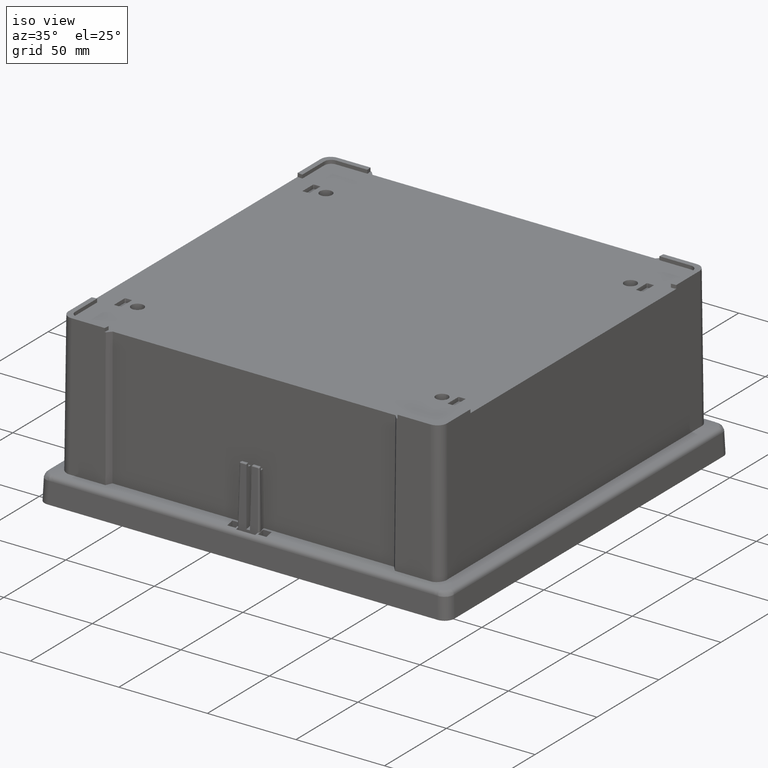
[diagram: clean part render]
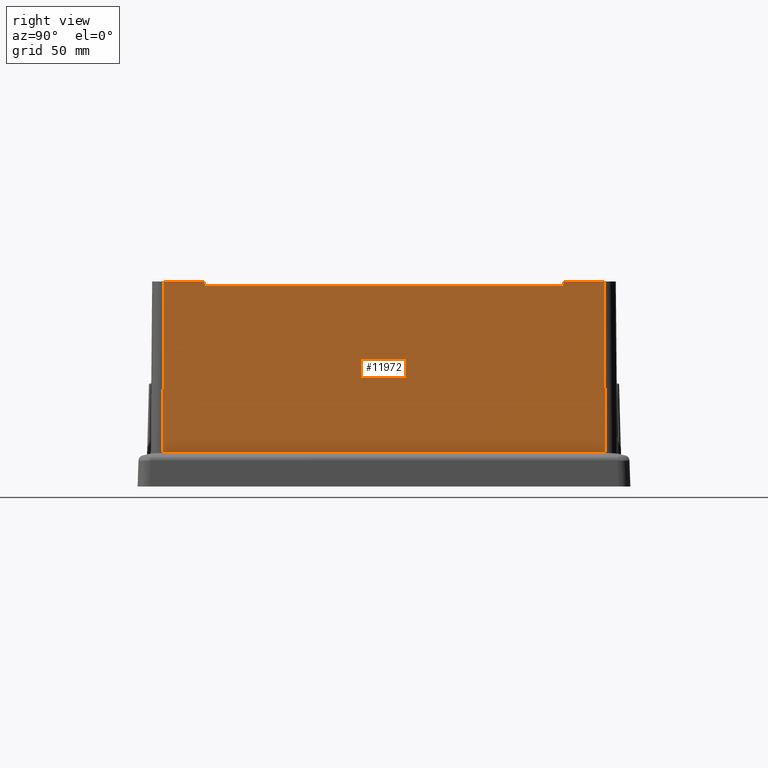
[diagram: tour spotlight — one face highlighted and labeled with its STEP entity id]
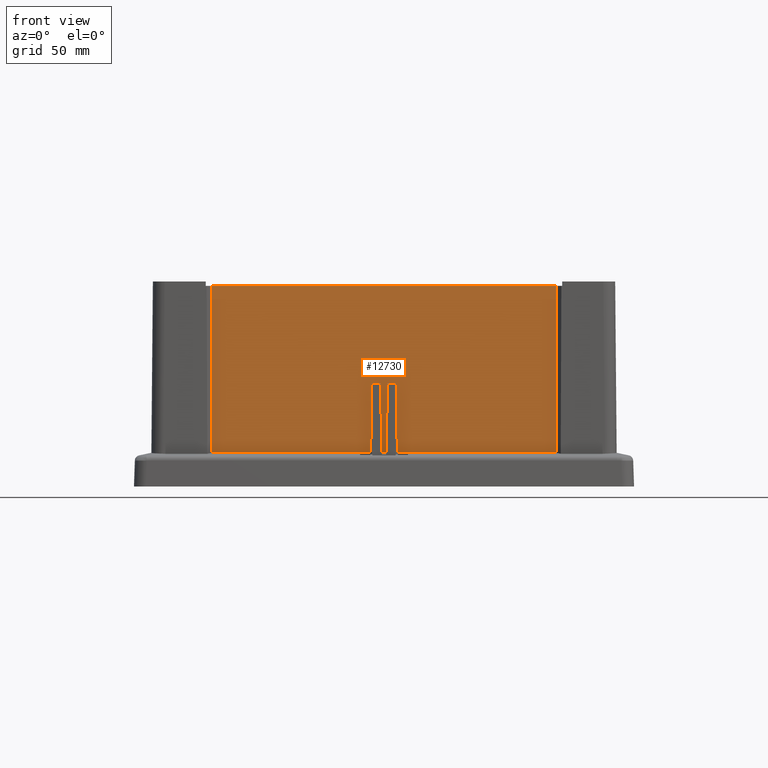
[diagram: tour spotlight — one face highlighted and labeled with its STEP entity id]
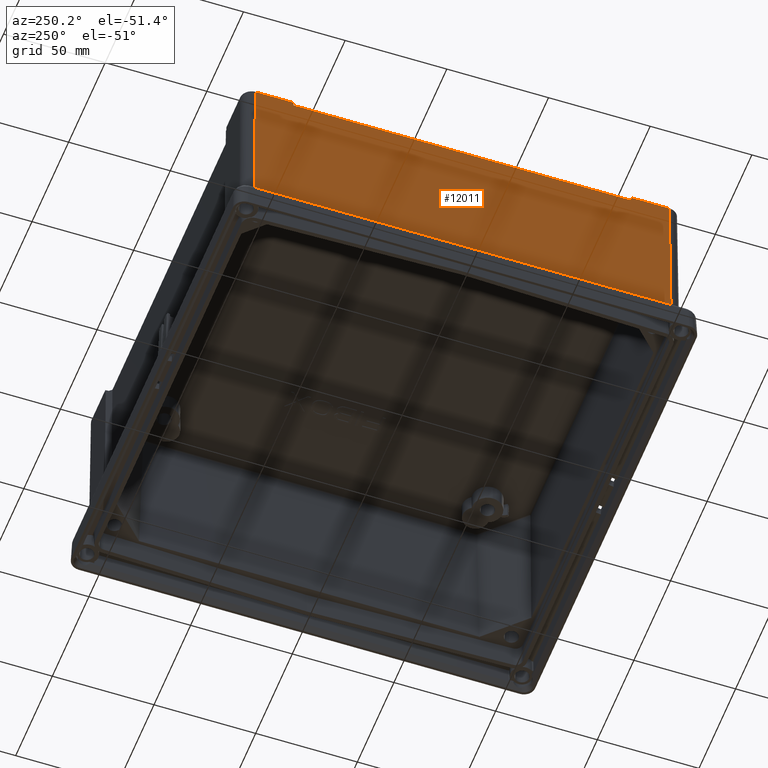
[diagram: tour spotlight — one face highlighted and labeled with its STEP entity id]
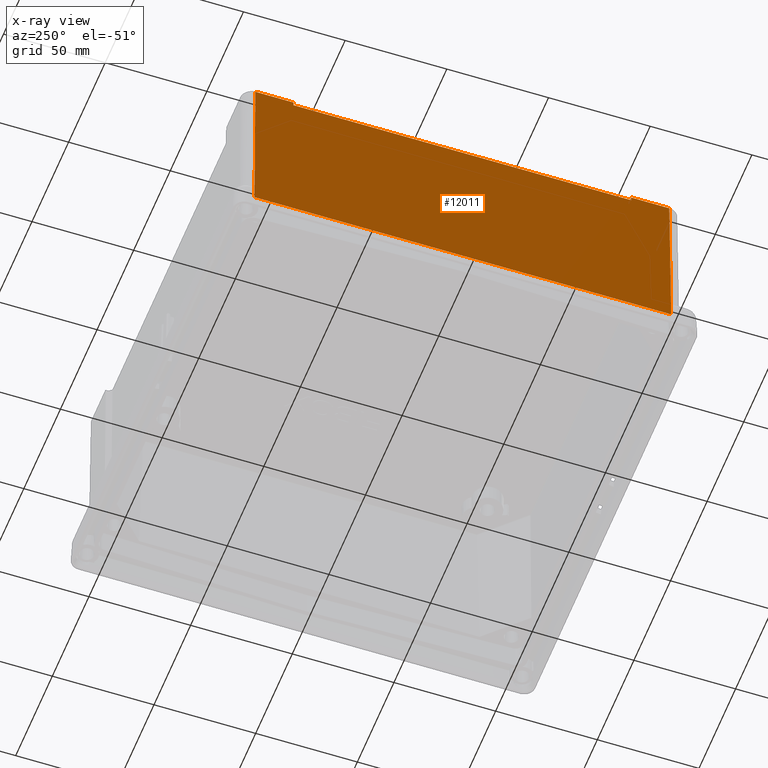
[diagram: x-ray of the same camera — body ghosted, this tour face saturated]
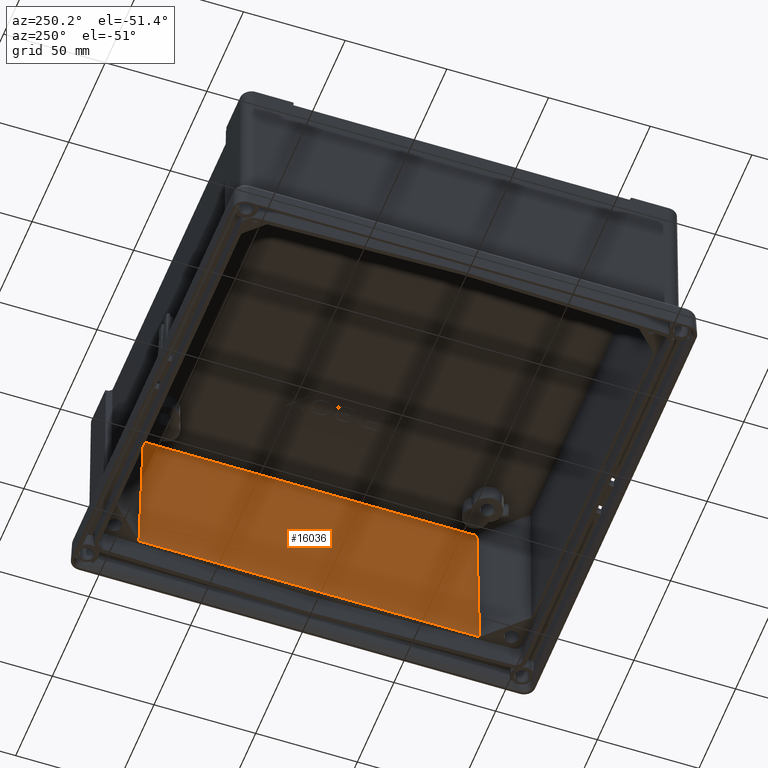
[diagram: tour spotlight — one face highlighted and labeled with its STEP entity id]
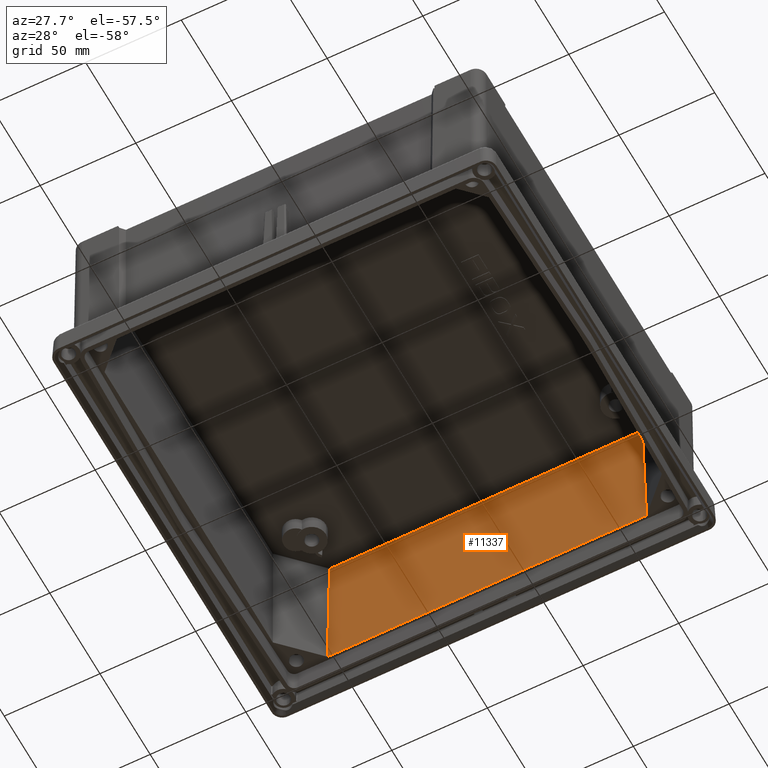
[diagram: tour spotlight — one face highlighted and labeled with its STEP entity id]
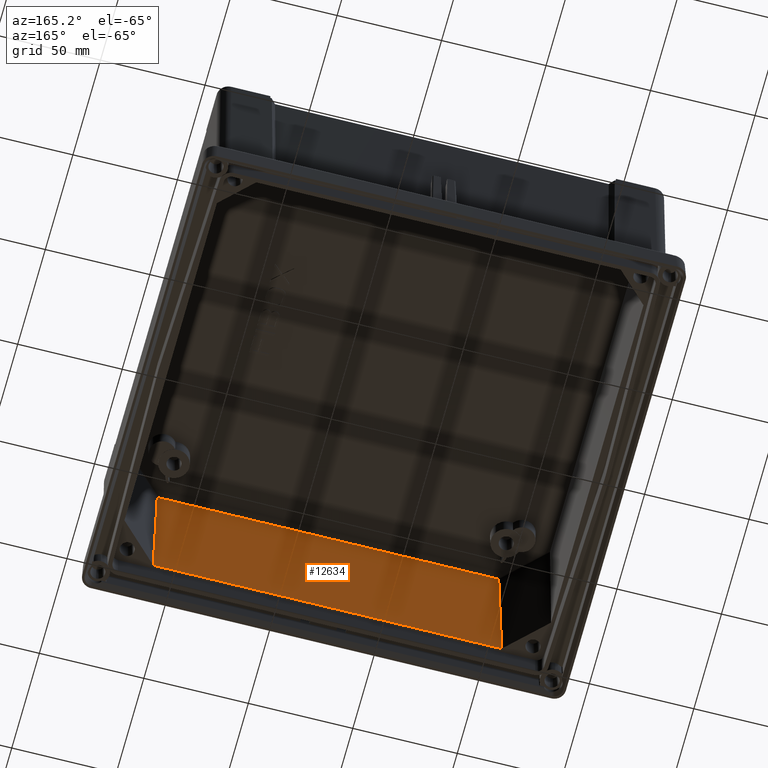
[diagram: tour spotlight — one face highlighted and labeled with its STEP entity id]
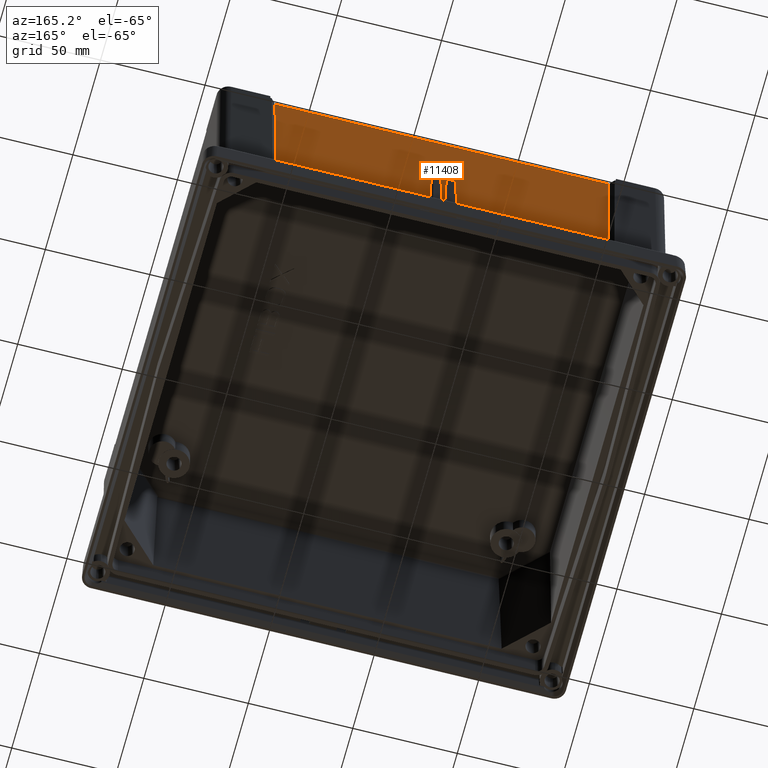
[diagram: tour spotlight — one face highlighted and labeled with its STEP entity id]
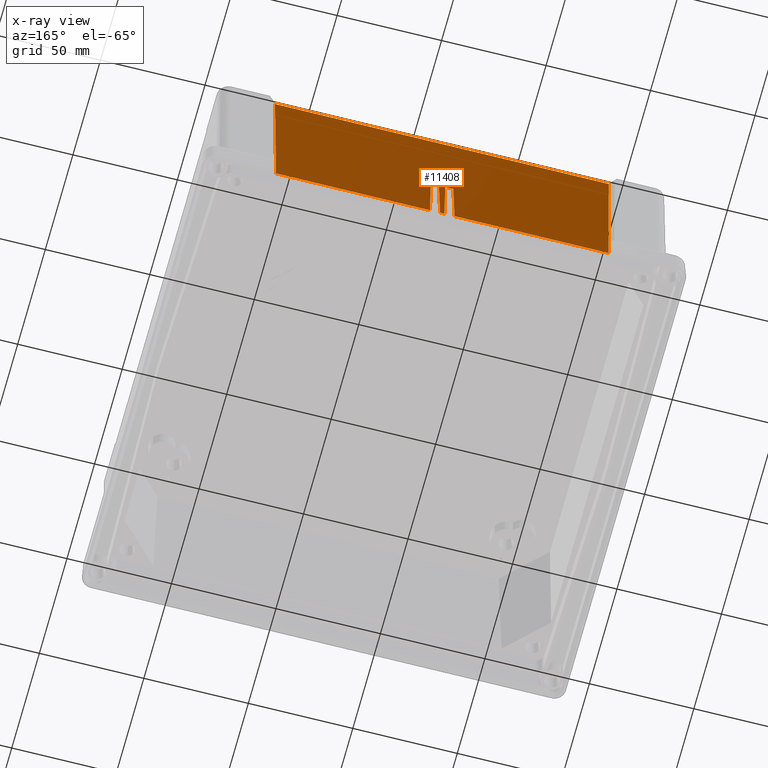
[diagram: x-ray of the same camera — body ghosted, this tour face saturated]
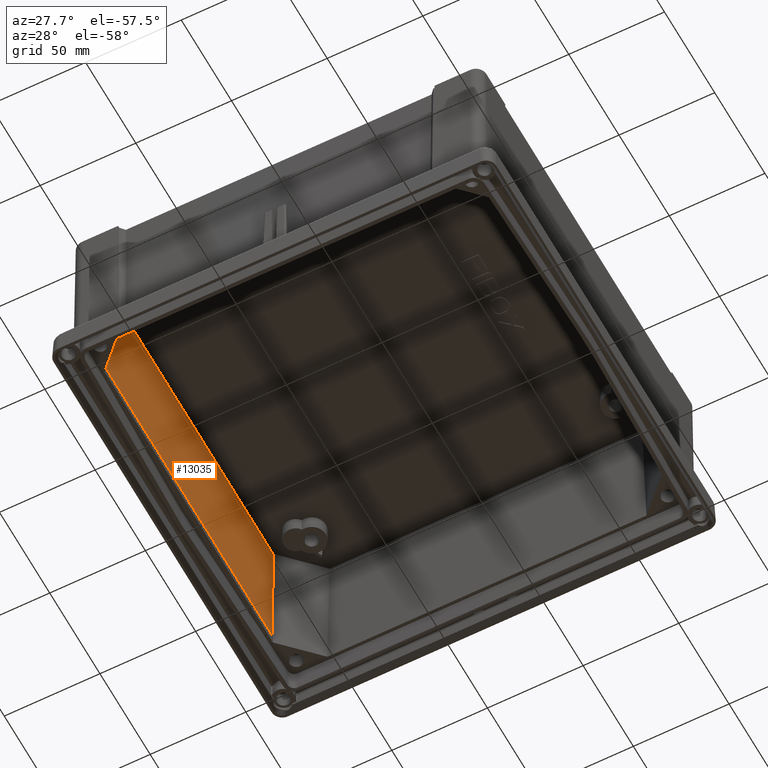
[diagram: tour spotlight — one face highlighted and labeled with its STEP entity id]
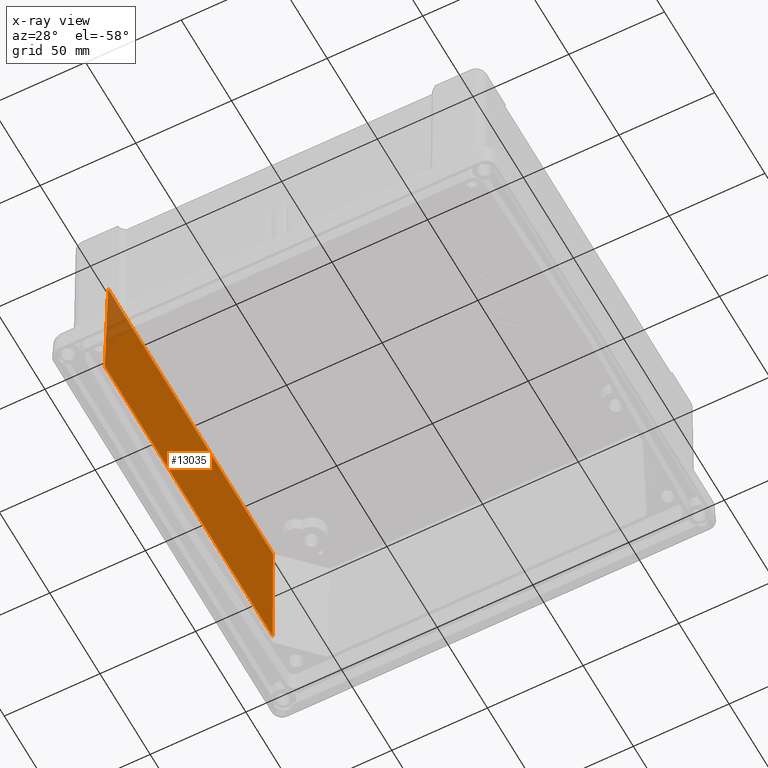
[diagram: x-ray of the same camera — body ghosted, this tour face saturated]
A machine part: a face-by-face anatomy tour. The part has 479 B-rep faces; the first image is the clean iso view, then the 8 largest visible faces are spotlighted one at a time (largest first), each with its STEP entity span.

Face 1 — right view, entity #11972. In plain terms, the highlighted planar face has unit normal (1, 0, 0.0087).
Definition (entity closure, byte-faithful):
#1481 = DIRECTION ( 'NONE',  ( 0.008726203243944160100, 0.008726203243943983200, -0.9999238504775704900 ) ) ;
#1482 = VECTOR ( 'NONE', #1481, 1000.000000000000100 ) ;
#1483 = CARTESIAN_POINT ( 'NONE',  ( 81.99327559649991300, 102.1084850196469800, 55.20014913142097900 ) ) ;
#1484 = LINE ( 'NONE', #1483, #1482 ) ;
#1485 = CARTESIAN_POINT ( 'NONE',  ( 82.33929485336678100, 102.4545025031291200, 15.55026956828075100 ) ) ;
#4273 = CARTESIAN_POINT ( 'NONE',  ( 81.64725659004651000, 101.7624660131935900, 94.85000000000000900 ) ) ;
#4292 = DIRECTION ( 'NONE',  ( 0.0000000000000000000, -1.000000000000000000, -7.410433191173302200E-016 ) ) ;
#4293 = VECTOR ( 'NONE', #4292, 1000.000000000000000 ) ;
#4294 = CARTESIAN_POINT ( 'NONE',  ( 81.64725659004652400, 92.39878412726515900, 94.84999999999999400 ) ) ;
#4295 = LINE ( 'NONE', #4294, #4293 ) ;
#4354 = CARTESIAN_POINT ( 'NONE',  ( 82.33877365147454000, 100.4403260346701900, 15.60999338957639500 ) ) ;
#4355 = B_SPLINE_CURVE_WITH_KNOTS ( 'NONE', 3,
 ( #4414, #4413, #4412, #4411 ),
 .UNSPECIFIED., .F., .F.,
 ( 4, 4 ),
 ( 8.330213658873783200E-016, 0.002015061798699640600 ),
 .UNSPECIFIED. ) ;
#4411 = CARTESIAN_POINT ( 'NONE',  ( 82.33877365147454000, 100.4403260346701900, 15.60999338957639500 ) ) ;
#4412 = CARTESIAN_POINT ( 'NONE',  ( 82.33877365147365900, 101.1123085406981700, 15.60999338957647400 ) ) ;
#4413 = CARTESIAN_POINT ( 'NONE',  ( 82.33898411689480700, 101.7835758829701400, 15.58587644117111600 ) ) ;
#4414 = CARTESIAN_POINT ( 'NONE',  ( 82.33929485336678100, 102.4545025031291200, 15.55026956828075100 ) ) ;
#5386 = DIRECTION ( 'NONE',  ( 0.0000000000000000000, 1.000000000000000000, 0.0000000000000000000 ) ) ;
#5387 = VECTOR ( 'NONE', #5386, 1000.000000000000000 ) ;
#5388 = CARTESIAN_POINT ( 'NONE',  ( 81.66471032562803600, 0.0000000000000000000, 92.84999999999999400 ) ) ;
#5389 = LINE ( 'NONE', #5388, #5387 ) ;
#5920 = DIRECTION ( 'NONE',  ( 0.008726535498373934700, 0.0000000000000000000, -0.9999619230641713100 ) ) ;
#5921 = DIRECTION ( 'NONE',  ( 0.9999619230641713100, 0.0000000000000000000, 0.008726535498373934700 ) ) ;
#5922 = CARTESIAN_POINT ( 'NONE',  ( 82.47499999999999400, 113.5893030146101000, 0.0000000000000000000 ) ) ;
#5923 = AXIS2_PLACEMENT_3D ( 'NONE', #5922, #5921, #5920 ) ;
#5924 = PLANE ( 'NONE',  #5923 ) ;
#5926 = FACE_OUTER_BOUND ( 'NONE', #11973, .T. ) ;
#5943 = DIRECTION ( 'NONE',  ( 6.908474093873458200E-017, -1.000000000000000000, -1.727118523468364500E-017 ) ) ;
#5944 = VECTOR ( 'NONE', #5943, 1000.000000000000000 ) ;
#5945 = CARTESIAN_POINT ( 'NONE',  ( 82.33877365147456800, 1.387778780781445700E-014, 15.60999338957639000 ) ) ;
#5946 = LINE ( 'NONE', #5945, #5944 ) ;
#6025 = CARTESIAN_POINT ( 'NONE',  ( 81.66471032562803600, -83.01910883932032400, 92.84999999999999400 ) ) ;
#6026 = DIRECTION ( 'NONE',  ( 0.008726256514125417500, 0.007996140876373044100, -0.9999299546359909900 ) ) ;
#6027 = VECTOR ( 'NONE', #6026, 1000.000000000000100 ) ;
#6028 = CARTESIAN_POINT ( 'NONE',  ( 81.65598345783728000, -83.02710554032853500, 93.84999999999999400 ) ) ;
#6029 = LINE ( 'NONE', #6028, #6027 ) ;
#6030 = CARTESIAN_POINT ( 'NONE',  ( 81.64725659004652400, -83.03510224133674500, 94.84999999999999400 ) ) ;
#6239 = CARTESIAN_POINT ( 'NONE',  ( 81.64725659004651000, -101.7624660131936000, 94.84999999999999400 ) ) ;
#6240 = DIRECTION ( 'NONE',  ( 0.008726203243944160100, -0.008726203243943983200, -0.9999238504775704900 ) ) ;
#6241 = VECTOR ( 'NONE', #6240, 1000.000000000000100 ) ;
#6242 = CARTESIAN_POINT ( 'NONE',  ( 81.99327559649991300, -102.1084850196469900, 55.20014913142097900 ) ) ;
#6243 = CARTESIAN_POINT ( 'NONE',  ( 82.33929485336682300, -102.4545025031291500, 15.55026956828075400 ) ) ;
#6245 = LINE ( 'NONE', #6242, #6241 ) ;
#6577 = VECTOR ( 'NONE', #6588, 1000.000000000000000 ) ;
#6586 = LINE ( 'NONE', #6589, #6577 ) ;
#6588 = DIRECTION ( 'NONE',  ( 0.0000000000000000000, 1.000000000000000000, -7.410433191173302200E-016 ) ) ;
#6589 = CARTESIAN_POINT ( 'NONE',  ( 81.64725659004652400, -92.39878412726518800, 94.84999999999999400 ) ) ;
#6911 = CARTESIAN_POINT ( 'NONE',  ( 82.33877365147456800, -100.4403260346701500, 15.60999338957639000 ) ) ;
#6912 = CARTESIAN_POINT ( 'NONE',  ( 82.33877365147405700, -101.1123085406981500, 15.60999338957649000 ) ) ;
#6913 = CARTESIAN_POINT ( 'NONE',  ( 82.33898411689480700, -101.7835758829701000, 15.58587644117111800 ) ) ;
#6914 = CARTESIAN_POINT ( 'NONE',  ( 82.33929485336682300, -102.4545025031291500, 15.55026956828075400 ) ) ;
#6916 = B_SPLINE_CURVE_WITH_KNOTS ( 'NONE', 3,
 ( #6914, #6913, #6912, #6911 ),
 .UNSPECIFIED., .F., .F.,
 ( 4, 4 ),
 ( 7.774832451157882900E-016, 0.002015061798699654000 ),
 .UNSPECIFIED. ) ;
#6919 = CARTESIAN_POINT ( 'NONE',  ( 82.33877365147456800, -100.4403260346701500, 15.60999338957639000 ) ) ;
#10948 = VERTEX_POINT ( 'NONE', #15618 ) ;
#10954 = VERTEX_POINT ( 'NONE', #15608 ) ;
#10956 = EDGE_CURVE ( 'NONE', #10948, #10954, #15607, .T. ) ;
#10996 = EDGE_CURVE ( 'NONE', #11010, #10948, #4295, .T. ) ;
#11010 = VERTEX_POINT ( 'NONE', #4273 ) ;
#11045 = EDGE_CURVE ( 'NONE', #16189, #11046, #4355, .T. ) ;
#11046 = VERTEX_POINT ( 'NONE', #4354 ) ;
#11427 = EDGE_CURVE ( 'NONE', #12044, #10954, #5389, .T. ) ;
#11952 = EDGE_CURVE ( 'NONE', #11046, #12343, #5946, .T. ) ;
#11953 = ORIENTED_EDGE ( 'NONE', *, *, #11045, .F. ) ;
#11954 = ORIENTED_EDGE ( 'NONE', *, *, #16190, .F. ) ;
#11955 = ORIENTED_EDGE ( 'NONE', *, *, #10996, .T. ) ;
#11956 = ORIENTED_EDGE ( 'NONE', *, *, #10956, .T. ) ;
#11957 = ORIENTED_EDGE ( 'NONE', *, *, #11427, .F. ) ;
#11958 = ORIENTED_EDGE ( 'NONE', *, *, #12043, .F. ) ;
#11959 = ORIENTED_EDGE ( 'NONE', *, *, #12233, .F. ) ;
#11960 = ORIENTED_EDGE ( 'NONE', *, *, #12146, .T. ) ;
#11961 = ORIENTED_EDGE ( 'NONE', *, *, #12345, .T. ) ;
#11972 = ADVANCED_FACE ( 'NONE', ( #5926 ), #5924, .T. ) ;
#11973 = EDGE_LOOP ( 'NONE', ( #11974, #11953, #11954, #11955, #11956, #11957, #11958, #11959, #11960, #11961 ) ) ;
#11974 = ORIENTED_EDGE ( 'NONE', *, *, #11952, .F. ) ;
#12041 = VERTEX_POINT ( 'NONE', #6030 ) ;
#12043 = EDGE_CURVE ( 'NONE', #12041, #12044, #6029, .T. ) ;
#12044 = VERTEX_POINT ( 'NONE', #6025 ) ;
#12144 = VERTEX_POINT ( 'NONE', #6243 ) ;
#12146 = EDGE_CURVE ( 'NONE', #12147, #12144, #6245, .T. ) ;
#12147 = VERTEX_POINT ( 'NONE', #6239 ) ;
#12233 = EDGE_CURVE ( 'NONE', #12147, #12041, #6586, .T. ) ;
#12343 = VERTEX_POINT ( 'NONE', #6919 ) ;
#12345 = EDGE_CURVE ( 'NONE', #12144, #12343, #6916, .T. ) ;
#15605 = DIRECTION ( 'NONE',  ( 0.008726256514125417500, -0.007996140876366107000, -0.9999299546359909900 ) ) ;
#15606 = CARTESIAN_POINT ( 'NONE',  ( 81.65598345783728000, 83.02710554032852000, 93.84999999999999400 ) ) ;
#15607 = LINE ( 'NONE', #15606, #15670 ) ;
#15608 = CARTESIAN_POINT ( 'NONE',  ( 81.66471032562803600, 83.01910883932032400, 92.84999999999999400 ) ) ;
#15618 = CARTESIAN_POINT ( 'NONE',  ( 81.64725659004652400, 83.03510224133673000, 94.84999999999999400 ) ) ;
#15670 = VECTOR ( 'NONE', #15605, 1000.000000000000100 ) ;
#16189 = VERTEX_POINT ( 'NONE', #1485 ) ;
#16190 = EDGE_CURVE ( 'NONE', #11010, #16189, #1484, .T. ) ;

Face 2 — front view, entity #12730. In plain terms, the highlighted planar face has unit normal (0, -1, 0.0087).
Definition (entity closure, byte-faithful):
#176 = CARTESIAN_POINT ( 'NONE',  ( -30.66176431191905700, -105.1911821419623300, 45.69999999999999600 ) ) ;
#216 = DIRECTION ( 'NONE',  ( -1.000000000000000000, 0.0000000000000000000, 0.0000000000000000000 ) ) ;
#217 = VECTOR ( 'NONE', #216, 1000.000000000000000 ) ;
#218 = CARTESIAN_POINT ( 'NONE',  ( -28.74999999999999600, -105.1911821419623300, 45.69999999999999600 ) ) ;
#219 = LINE ( 'NONE', #218, #217 ) ;
#220 = CARTESIAN_POINT ( 'NONE',  ( -26.83823568808094300, -105.1911821419623300, 45.69999999999999600 ) ) ;
#226 = CARTESIAN_POINT ( 'NONE',  ( -23.76176431191908000, -105.1911821419623300, 45.69999999999999600 ) ) ;
#227 = DIRECTION ( 'NONE',  ( -1.000000000000000000, 0.0000000000000000000, 0.0000000000000000000 ) ) ;
#228 = VECTOR ( 'NONE', #227, 1000.000000000000000 ) ;
#229 = CARTESIAN_POINT ( 'NONE',  ( -21.85000000000000900, -105.1911821419623300, 45.69999999999999600 ) ) ;
#230 = LINE ( 'NONE', #229, #228 ) ;
#6060 = CARTESIAN_POINT ( 'NONE',  ( 54.25763150226279000, -105.4528720783800500, 15.71330343346608100 ) ) ;
#6061 = CARTESIAN_POINT ( 'NONE',  ( 54.56194508655269000, -104.7797103256280500, 92.84999999999999400 ) ) ;
#6210 = DIRECTION ( 'NONE',  ( 0.003944939861817865100, 0.008726467594534994100, 0.9999541420549285000 ) ) ;
#6221 = VECTOR ( 'NONE', #6210, 1000.000000000000100 ) ;
#6222 = CARTESIAN_POINT ( 'NONE',  ( 54.40978829440777500, -105.1162912020040500, 54.28165171673303700 ) ) ;
#6223 = LINE ( 'NONE', #6222, #6221 ) ;
#7946 = DIRECTION ( 'NONE',  ( -0.003944939861817593600, 0.008726467594534994100, 0.9999541420549285000 ) ) ;
#7947 = VECTOR ( 'NONE', #7946, 1000.000000000000100 ) ;
#7948 = CARTESIAN_POINT ( 'NONE',  ( -105.0097882944077400, -105.1162912020040500, 54.28165171673303700 ) ) ;
#7949 = LINE ( 'NONE', #7948, #7947 ) ;
#7950 = CARTESIAN_POINT ( 'NONE',  ( -104.8576315022628100, -105.4528720783800700, 15.71330343346607700 ) ) ;
#7960 = CARTESIAN_POINT ( 'NONE',  ( -105.1619450865526900, -104.7797103256280500, 92.84999999999999400 ) ) ;
#7965 = DIRECTION ( 'NONE',  ( 0.0000000000000000000, -0.008726535498373934700, -0.9999619230641713100 ) ) ;
#7966 = DIRECTION ( 'NONE',  ( 0.0000000000000000000, -0.9999619230641713100, 0.008726535498373934700 ) ) ;
#7967 = CARTESIAN_POINT ( 'NONE',  ( 136.0743030146100800, -105.5900000000000000, 0.0000000000000000000 ) ) ;
#7968 = AXIS2_PLACEMENT_3D ( 'NONE', #7967, #7966, #7965 ) ;
#7969 = PLANE ( 'NONE',  #7968 ) ;
#7971 = FACE_OUTER_BOUND ( 'NONE', #12731, .T. ) ;
#8045 = DIRECTION ( 'NONE',  ( -1.000000000000000000, -1.883714779033278900E-016, -4.709286947583197200E-017 ) ) ;
#8046 = VECTOR ( 'NONE', #8045, 1000.000000000000000 ) ;
#8047 = CARTESIAN_POINT ( 'NONE',  ( 17.42140777486673300, -105.4528720783800500, 15.71330343346608100 ) ) ;
#8051 = LINE ( 'NONE', #8047, #8046 ) ;
#8063 = DIRECTION ( 'NONE',  ( 1.000000000000000000, 0.0000000000000000000, 0.0000000000000000000 ) ) ;
#8064 = VECTOR ( 'NONE', #8063, 1000.000000000000000 ) ;
#8065 = CARTESIAN_POINT ( 'NONE',  ( -25.30000000000000400, -105.4528720783800700, 15.71330343346607700 ) ) ;
#8066 = LINE ( 'NONE', #8065, #8064 ) ;
#8097 = DIRECTION ( 'NONE',  ( -1.000000000000000000, 0.0000000000000000000, -4.709286947583196600E-017 ) ) ;
#8098 = VECTOR ( 'NONE', #8097, 1000.000000000000000 ) ;
#8099 = CARTESIAN_POINT ( 'NONE',  ( -68.02140777486674500, -105.4528720783800700, 15.71330343346608100 ) ) ;
#8100 = LINE ( 'NONE', #8099, #8098 ) ;
#8101 = DIRECTION ( 'NONE',  ( -1.000000000000000000, 0.0000000000000000000, 0.0000000000000000000 ) ) ;
#8102 = VECTOR ( 'NONE', #8101, 1000.000000000000000 ) ;
#8103 = CARTESIAN_POINT ( 'NONE',  ( -25.30000000000000100, -104.7797103256280500, 92.84999999999999400 ) ) ;
#8104 = LINE ( 'NONE', #8103, #8102 ) ;
#8905 = DIRECTION ( 'NONE',  ( -0.01745174210552025800, 0.008725206505940266400, 0.9998096356151560100 ) ) ;
#8906 = VECTOR ( 'NONE', #8905, 1000.000000000000200 ) ;
#8907 = CARTESIAN_POINT ( 'NONE',  ( -19.67652582030513000, -105.3220271101711900, 30.70665171673303500 ) ) ;
#8908 = LINE ( 'NONE', #8907, #8906 ) ;
#8909 = CARTESIAN_POINT ( 'NONE',  ( -19.41481595252932400, -105.4528720783800700, 15.71330343346607700 ) ) ;
#8972 = CARTESIAN_POINT ( 'NONE',  ( -31.18518404747068500, -105.4528720783800700, 15.71330343346608100 ) ) ;
#8973 = DIRECTION ( 'NONE',  ( 0.01745174210552014000, 0.008725206505939803200, 0.9998096356151560100 ) ) ;
#8974 = VECTOR ( 'NONE', #8973, 1000.000000000000100 ) ;
#8975 = CARTESIAN_POINT ( 'NONE',  ( -30.92347417969487500, -105.3220271101712100, 30.70665171673304200 ) ) ;
#8981 = LINE ( 'NONE', #8975, #8974 ) ;
#9027 = DIRECTION ( 'NONE',  ( -0.01745174210552025800, 0.008725206505940266400, 0.9998096356151560100 ) ) ;
#9028 = VECTOR ( 'NONE', #9027, 1000.000000000000200 ) ;
#9029 = CARTESIAN_POINT ( 'NONE',  ( -26.57652582030513200, -105.3220271101711900, 30.70665171673303500 ) ) ;
#9030 = LINE ( 'NONE', #9029, #9028 ) ;
#9031 = CARTESIAN_POINT ( 'NONE',  ( -26.31481595252932900, -105.4528720783800700, 15.71330343346607700 ) ) ;
#9557 = CARTESIAN_POINT ( 'NONE',  ( -24.02347417969487300, -105.3220271101712100, 30.70665171673304200 ) ) ;
#9558 = LINE ( 'NONE', #9557, #9601 ) ;
#9600 = DIRECTION ( 'NONE',  ( 0.01745174210552014000, 0.008725206505939801400, 0.9998096356151560100 ) ) ;
#9601 = VECTOR ( 'NONE', #9600, 1000.000000000000200 ) ;
#9713 = CARTESIAN_POINT ( 'NONE',  ( -24.28518404747067900, -105.4528720783800700, 15.71330343346607700 ) ) ;
#9782 = CARTESIAN_POINT ( 'NONE',  ( -19.93823568808093700, -105.1911821419623300, 45.69999999999999600 ) ) ;
#12072 = VERTEX_POINT ( 'NONE', #6061 ) ;
#12073 = VERTEX_POINT ( 'NONE', #6060 ) ;
#12129 = EDGE_CURVE ( 'NONE', #12073, #12072, #6223, .T. ) ;
#12730 = ADVANCED_FACE ( 'NONE', ( #7971 ), #7969, .T. ) ;
#12731 = EDGE_LOOP ( 'NONE', ( #12732, #12733, #12795, #12796, #12798, #12799, #12801, #12802, #12804, #12782, #12783, #12784 ) ) ;
#12732 = ORIENTED_EDGE ( 'NONE', *, *, #13527, .T. ) ;
#12733 = ORIENTED_EDGE ( 'NONE', *, *, #14068, .F. ) ;
#12738 = VERTEX_POINT ( 'NONE', #7960 ) ;
#12744 = VERTEX_POINT ( 'NONE', #7950 ) ;
#12746 = EDGE_CURVE ( 'NONE', #12744, #12738, #7949, .T. ) ;
#12782 = ORIENTED_EDGE ( 'NONE', *, *, #14059, .F. ) ;
#12783 = ORIENTED_EDGE ( 'NONE', *, *, #13335, .F. ) ;
#12784 = ORIENTED_EDGE ( 'NONE', *, *, #12785, .T. ) ;
#12785 = EDGE_CURVE ( 'NONE', #13333, #13587, #8066, .T. ) ;
#12795 = ORIENTED_EDGE ( 'NONE', *, *, #13244, .F. ) ;
#12796 = ORIENTED_EDGE ( 'NONE', *, *, #12797, .F. ) ;
#12797 = EDGE_CURVE ( 'NONE', #12073, #13242, #8051, .T. ) ;
#12798 = ORIENTED_EDGE ( 'NONE', *, *, #12129, .T. ) ;
#12799 = ORIENTED_EDGE ( 'NONE', *, *, #12800, .T. ) ;
#12800 = EDGE_CURVE ( 'NONE', #12072, #12738, #8104, .T. ) ;
#12801 = ORIENTED_EDGE ( 'NONE', *, *, #12746, .F. ) ;
#12802 = ORIENTED_EDGE ( 'NONE', *, *, #12803, .F. ) ;
#12803 = EDGE_CURVE ( 'NONE', #13287, #12744, #8100, .T. ) ;
#12804 = ORIENTED_EDGE ( 'NONE', *, *, #13286, .T. ) ;
#13242 = VERTEX_POINT ( 'NONE', #8909 ) ;
#13244 = EDGE_CURVE ( 'NONE', #13242, #13627, #8908, .T. ) ;
#13286 = EDGE_CURVE ( 'NONE', #13287, #14055, #8981, .T. ) ;
#13287 = VERTEX_POINT ( 'NONE', #8972 ) ;
#13333 = VERTEX_POINT ( 'NONE', #9031 ) ;
#13335 = EDGE_CURVE ( 'NONE', #13333, #14074, #9030, .T. ) ;
#13527 = EDGE_CURVE ( 'NONE', #13587, #14069, #9558, .T. ) ;
#13587 = VERTEX_POINT ( 'NONE', #9713 ) ;
#13627 = VERTEX_POINT ( 'NONE', #9782 ) ;
#14055 = VERTEX_POINT ( 'NONE', #176 ) ;
#14059 = EDGE_CURVE ( 'NONE', #14074, #14055, #219, .T. ) ;
#14068 = EDGE_CURVE ( 'NONE', #13627, #14069, #230, .T. ) ;
#14069 = VERTEX_POINT ( 'NONE', #226 ) ;
#14074 = VERTEX_POINT ( 'NONE', #220 ) ;

Face 3 — auxiliary view, entity #12011. An x-ray twin of the same camera follows (body ghosted, this face saturated) — the face is partly hidden behind the body. In plain terms, the highlighted planar face has unit normal (-1, 0, 0.0087).
Definition (entity closure, byte-faithful):
#2249 = CARTESIAN_POINT ( 'NONE',  ( -132.2472565900465000, 101.7624660131935900, 94.84999999999999400 ) ) ;
#2296 = DIRECTION ( 'NONE',  ( 0.0000000000000000000, -1.000000000000000000, -7.410433191173302200E-016 ) ) ;
#2297 = VECTOR ( 'NONE', #2296, 1000.000000000000000 ) ;
#2298 = CARTESIAN_POINT ( 'NONE',  ( -132.2472565900465000, 92.39878412726515900, 94.84999999999999400 ) ) ;
#2299 = LINE ( 'NONE', #2298, #2297 ) ;
#4968 = DIRECTION ( 'NONE',  ( -0.008726203243944684000, 0.008726203243943983200, -0.9999238504775704900 ) ) ;
#4969 = VECTOR ( 'NONE', #4968, 1000.000000000000100 ) ;
#4970 = CARTESIAN_POINT ( 'NONE',  ( -132.5932755964999200, 102.1084850196469800, 55.20014913142097900 ) ) ;
#4971 = LINE ( 'NONE', #4970, #4969 ) ;
#4973 = CARTESIAN_POINT ( 'NONE',  ( -132.9392948533667900, 102.4545025031291500, 15.55026956828075400 ) ) ;
#5367 = DIRECTION ( 'NONE',  ( 0.0000000000000000000, -1.000000000000000000, 0.0000000000000000000 ) ) ;
#5368 = VECTOR ( 'NONE', #5367, 1000.000000000000000 ) ;
#5369 = CARTESIAN_POINT ( 'NONE',  ( -132.2647103256280400, 0.0000000000000000000, 92.84999999999999400 ) ) ;
#5370 = LINE ( 'NONE', #5369, #5368 ) ;
#5657 = CARTESIAN_POINT ( 'NONE',  ( -132.9392948533667900, 102.4545025031291500, 15.55026956828075400 ) ) ;
#5662 = B_SPLINE_CURVE_WITH_KNOTS ( 'NONE', 3,
 ( #5657, #5821, #5823, #5822 ),
 .UNSPECIFIED., .F., .F.,
 ( 4, 4 ),
 ( 7.774832451157882900E-016, 0.002015061798699626300 ),
 .UNSPECIFIED. ) ;
#5821 = CARTESIAN_POINT ( 'NONE',  ( -132.9389841168947400, 101.7835758829701000, 15.58587644117111600 ) ) ;
#5822 = CARTESIAN_POINT ( 'NONE',  ( -132.9387736514745500, 100.4403260346701800, 15.60999338957639400 ) ) ;
#5823 = CARTESIAN_POINT ( 'NONE',  ( -132.9387736514740900, 101.1123085406982100, 15.60999338957648100 ) ) ;
#5824 = CARTESIAN_POINT ( 'NONE',  ( -132.9387736514745500, 100.4403260346701800, 15.60999338957639400 ) ) ;
#5998 = DIRECTION ( 'NONE',  ( 0.0000000000000000000, 1.000000000000000000, 0.0000000000000000000 ) ) ;
#5999 = VECTOR ( 'NONE', #5998, 1000.000000000000000 ) ;
#6000 = CARTESIAN_POINT ( 'NONE',  ( -132.9387736514745500, 1.387778780781445700E-014, 15.60999338957639200 ) ) ;
#6001 = LINE ( 'NONE', #6000, #5999 ) ;
#6002 = DIRECTION ( 'NONE',  ( 0.008726535498373934700, 0.0000000000000000000, 0.9999619230641713100 ) ) ;
#6003 = DIRECTION ( 'NONE',  ( -0.9999619230641713100, 0.0000000000000000000, 0.008726535498373934700 ) ) ;
#6004 = AXIS2_PLACEMENT_3D ( 'NONE', #6005, #6003, #6002 ) ;
#6005 = CARTESIAN_POINT ( 'NONE',  ( -133.0749999999999900, 113.5893030146101000, 0.0000000000000000000 ) ) ;
#6006 = PLANE ( 'NONE',  #6004 ) ;
#6010 = FACE_OUTER_BOUND ( 'NONE', #11951, .T. ) ;
#7764 = CARTESIAN_POINT ( 'NONE',  ( -132.2472565900465000, -83.03510224133674500, 94.84999999999999400 ) ) ;
#7897 = DIRECTION ( 'NONE',  ( -0.008726256514139293600, 0.007996140876373042400, -0.9999299546359908800 ) ) ;
#7898 = VECTOR ( 'NONE', #7897, 1000.000000000000000 ) ;
#7899 = CARTESIAN_POINT ( 'NONE',  ( -132.2559834578372600, -83.02710554032853500, 93.84999999999999400 ) ) ;
#7900 = LINE ( 'NONE', #7899, #7898 ) ;
#7901 = CARTESIAN_POINT ( 'NONE',  ( -132.2647103256280400, -83.01910883932032400, 92.84999999999999400 ) ) ;
#7978 = CARTESIAN_POINT ( 'NONE',  ( -132.9392948533668200, -102.4545025031291800, 15.55026956828074900 ) ) ;
#7979 = DIRECTION ( 'NONE',  ( -0.008726203243944684000, -0.008726203243943983200, -0.9999238504775704900 ) ) ;
#7980 = VECTOR ( 'NONE', #7979, 1000.000000000000100 ) ;
#7981 = CARTESIAN_POINT ( 'NONE',  ( -132.5932755964999200, -102.1084850196469900, 55.20014913142097900 ) ) ;
#7987 = LINE ( 'NONE', #7981, #7980 ) ;
#7988 = CARTESIAN_POINT ( 'NONE',  ( -132.2472565900465000, -101.7624660131936000, 94.84999999999999400 ) ) ;
#8296 = DIRECTION ( 'NONE',  ( 0.0000000000000000000, 1.000000000000000000, -7.410433191173302200E-016 ) ) ;
#8297 = VECTOR ( 'NONE', #8296, 1000.000000000000000 ) ;
#8298 = CARTESIAN_POINT ( 'NONE',  ( -132.2472565900465000, -92.39878412726518800, 94.84999999999999400 ) ) ;
#8299 = LINE ( 'NONE', #8298, #8297 ) ;
#8369 = CARTESIAN_POINT ( 'NONE',  ( -132.9387736514746100, -100.4403260346702100, 15.60999338957639000 ) ) ;
#8370 = CARTESIAN_POINT ( 'NONE',  ( -132.9387736514735500, -101.1123085406981500, 15.60999338957649800 ) ) ;
#8371 = CARTESIAN_POINT ( 'NONE',  ( -132.9389841168948000, -101.7835758829701300, 15.58587644117111100 ) ) ;
#8372 = CARTESIAN_POINT ( 'NONE',  ( -132.9392948533668200, -102.4545025031291800, 15.55026956828074900 ) ) ;
#8373 = B_SPLINE_CURVE_WITH_KNOTS ( 'NONE', 3,
 ( #8372, #8371, #8370, #8369 ),
 .UNSPECIFIED., .F., .F.,
 ( 4, 4 ),
 ( 7.774832451157882900E-016, 0.002015061798699626300 ),
 .UNSPECIFIED. ) ;
#8376 = CARTESIAN_POINT ( 'NONE',  ( -132.9387736514746100, -100.4403260346702100, 15.60999338957639000 ) ) ;
#10986 = VERTEX_POINT ( 'NONE', #15681 ) ;
#10988 = EDGE_CURVE ( 'NONE', #10986, #10989, #15680, .T. ) ;
#10989 = VERTEX_POINT ( 'NONE', #15676 ) ;
#11353 = VERTEX_POINT ( 'NONE', #4973 ) ;
#11355 = EDGE_CURVE ( 'NONE', #16542, #11353, #4971, .T. ) ;
#11492 = EDGE_CURVE ( 'NONE', #10989, #12714, #5370, .T. ) ;
#11902 = VERTEX_POINT ( 'NONE', #5824 ) ;
#11904 = EDGE_CURVE ( 'NONE', #11353, #11902, #5662, .T. ) ;
#11951 = EDGE_LOOP ( 'NONE', ( #12012, #12013, #12014, #12015, #12016, #12017, #12019, #12020, #11998, #11999 ) ) ;
#11998 = ORIENTED_EDGE ( 'NONE', *, *, #12919, .T. ) ;
#11999 = ORIENTED_EDGE ( 'NONE', *, *, #12716, .T. ) ;
#12011 = ADVANCED_FACE ( 'NONE', ( #6010 ), #6006, .T. ) ;
#12012 = ORIENTED_EDGE ( 'NONE', *, *, #11492, .F. ) ;
#12013 = ORIENTED_EDGE ( 'NONE', *, *, #10988, .F. ) ;
#12014 = ORIENTED_EDGE ( 'NONE', *, *, #16545, .F. ) ;
#12015 = ORIENTED_EDGE ( 'NONE', *, *, #11355, .T. ) ;
#12016 = ORIENTED_EDGE ( 'NONE', *, *, #11904, .T. ) ;
#12017 = ORIENTED_EDGE ( 'NONE', *, *, #12018, .F. ) ;
#12018 = EDGE_CURVE ( 'NONE', #12949, #11902, #6001, .T. ) ;
#12019 = ORIENTED_EDGE ( 'NONE', *, *, #12948, .F. ) ;
#12020 = ORIENTED_EDGE ( 'NONE', *, *, #12756, .F. ) ;
#12657 = VERTEX_POINT ( 'NONE', #7764 ) ;
#12714 = VERTEX_POINT ( 'NONE', #7901 ) ;
#12716 = EDGE_CURVE ( 'NONE', #12657, #12714, #7900, .T. ) ;
#12754 = VERTEX_POINT ( 'NONE', #7988 ) ;
#12756 = EDGE_CURVE ( 'NONE', #12754, #12757, #7987, .T. ) ;
#12757 = VERTEX_POINT ( 'NONE', #7978 ) ;
#12919 = EDGE_CURVE ( 'NONE', #12754, #12657, #8299, .T. ) ;
#12948 = EDGE_CURVE ( 'NONE', #12757, #12949, #8373, .T. ) ;
#12949 = VERTEX_POINT ( 'NONE', #8376 ) ;
#15676 = CARTESIAN_POINT ( 'NONE',  ( -132.2647103256280400, 83.01910883932032400, 92.84999999999999400 ) ) ;
#15677 = DIRECTION ( 'NONE',  ( -0.008726256514139295300, -0.007996140876366107000, -0.9999299546359909900 ) ) ;
#15678 = VECTOR ( 'NONE', #15677, 999.9999999999998900 ) ;
#15679 = CARTESIAN_POINT ( 'NONE',  ( -132.2559834578372600, 83.02710554032852000, 93.84999999999999400 ) ) ;
#15680 = LINE ( 'NONE', #15679, #15678 ) ;
#15681 = CARTESIAN_POINT ( 'NONE',  ( -132.2472565900465000, 83.03510224133673000, 94.84999999999999400 ) ) ;
#16542 = VERTEX_POINT ( 'NONE', #2249 ) ;
#16545 = EDGE_CURVE ( 'NONE', #16542, #10986, #2299, .T. ) ;

Face 4 — auxiliary view, entity #16036. In plain terms, the highlighted planar face has unit normal (-0.9999, 0, -0.014).
Definition (entity closure, byte-faithful):
#384 = CARTESIAN_POINT ( 'NONE',  ( 75.78783555663329700, -82.03521507471609200, 88.85698109016959700 ) ) ;
#1116 = DIRECTION ( 'NONE',  ( -0.01396218033914527000, 0.0000000000000000000, 0.9999025240093042400 ) ) ;
#1117 = DIRECTION ( 'NONE',  ( -0.9999025240093042400, 0.0000000000000000000, -0.01396218033914527000 ) ) ;
#1118 = CARTESIAN_POINT ( 'NONE',  ( 76.84999999999999400, -107.9993030146100900, 12.78999999999999900 ) ) ;
#1119 = AXIS2_PLACEMENT_3D ( 'NONE', #1118, #1117, #1116 ) ;
#1120 = FACE_OUTER_BOUND ( 'NONE', #16010, .T. ) ;
#1124 = PLANE ( 'NONE',  #1119 ) ;
#2436 = DIRECTION ( 'NONE',  ( 0.0000000000000000000, 1.000000000000000000, -1.691686648858643900E-016 ) ) ;
#2437 = VECTOR ( 'NONE', #2436, 1000.000000000000000 ) ;
#2438 = CARTESIAN_POINT ( 'NONE',  ( 75.78783555663329700, 0.0000000000000000000, 88.85698109016958300 ) ) ;
#2439 = LINE ( 'NONE', #2438, #2437 ) ;
#3113 = CARTESIAN_POINT ( 'NONE',  ( 75.78783555663329700, 82.03521507471609200, 88.85698109016956900 ) ) ;
#3237 = DIRECTION ( 'NONE',  ( 0.01395846737512612900, 0.02306056118043327300, -0.9996366198307167200 ) ) ;
#3238 = VECTOR ( 'NONE', #3237, 1000.000000000000100 ) ;
#3239 = CARTESIAN_POINT ( 'NONE',  ( 76.29797246614286600, 82.87800412139225200, 52.32349054508478000 ) ) ;
#3240 = LINE ( 'NONE', #3239, #3238 ) ;
#8688 = DIRECTION ( 'NONE',  ( 0.0000000000000000000, -1.000000000000000000, 0.0000000000000000000 ) ) ;
#8689 = VECTOR ( 'NONE', #8688, 1000.000000000000000 ) ;
#8690 = CARTESIAN_POINT ( 'NONE',  ( 76.80810937565245000, 0.0000000000000000000, 15.79000000000000300 ) ) ;
#8694 = LINE ( 'NONE', #8690, #8689 ) ;
#8784 = CARTESIAN_POINT ( 'NONE',  ( 76.80810937565245000, 83.72079316806841100, 15.79000000000000300 ) ) ;
#9654 = DIRECTION ( 'NONE',  ( 0.01395846737512612300, -0.02306056118043326600, -0.9996366198307167200 ) ) ;
#9655 = VECTOR ( 'NONE', #9654, 1000.000000000000100 ) ;
#9656 = CARTESIAN_POINT ( 'NONE',  ( 76.29797246614286600, -82.87800412139225200, 52.32349054508479500 ) ) ;
#9657 = LINE ( 'NONE', #9656, #9655 ) ;
#9683 = CARTESIAN_POINT ( 'NONE',  ( 76.80810937565245000, -83.72079316806841100, 15.79000000000000300 ) ) ;
#13115 = EDGE_CURVE ( 'NONE', #13174, #13569, #8694, .T. ) ;
#13174 = VERTEX_POINT ( 'NONE', #8784 ) ;
#13550 = EDGE_CURVE ( 'NONE', #14127, #13569, #9657, .T. ) ;
#13569 = VERTEX_POINT ( 'NONE', #9683 ) ;
#14127 = VERTEX_POINT ( 'NONE', #384 ) ;
#15965 = ORIENTED_EDGE ( 'NONE', *, *, #13550, .F. ) ;
#15976 = ORIENTED_EDGE ( 'NONE', *, *, #13115, .T. ) ;
#15993 = ORIENTED_EDGE ( 'NONE', *, *, #17121, .T. ) ;
#16009 = ORIENTED_EDGE ( 'NONE', *, *, #16620, .T. ) ;
#16010 = EDGE_LOOP ( 'NONE', ( #16009, #15993, #15976, #15965 ) ) ;
#16036 = ADVANCED_FACE ( 'NONE', ( #1120 ), #1124, .T. ) ;
#16620 = EDGE_CURVE ( 'NONE', #14127, #17037, #2439, .T. ) ;
#17037 = VERTEX_POINT ( 'NONE', #3113 ) ;
#17121 = EDGE_CURVE ( 'NONE', #17037, #13174, #3240, .T. ) ;

Face 5 — auxiliary view, entity #11337. In plain terms, the highlighted planar face has unit normal (0, -0.9999, -0.014).
Definition (entity closure, byte-faithful):
#1975 = CARTESIAN_POINT ( 'NONE',  ( -106.9852150747160900, 101.4378355566333000, 88.85698109016956900 ) ) ;
#2462 = DIRECTION ( 'NONE',  ( 1.000000000000000000, 0.0000000000000000000, 0.0000000000000000000 ) ) ;
#2463 = VECTOR ( 'NONE', #2462, 1000.000000000000000 ) ;
#2464 = CARTESIAN_POINT ( 'NONE',  ( -25.30000000000000400, 101.4378355566333000, 88.85698109016956900 ) ) ;
#2465 = LINE ( 'NONE', #2464, #2463 ) ;
#3211 = DIRECTION ( 'NONE',  ( 0.02306056118043289500, 0.01395846737512612900, -0.9996366198307167200 ) ) ;
#3212 = VECTOR ( 'NONE', #3211, 1000.000000000000100 ) ;
#3213 = CARTESIAN_POINT ( 'NONE',  ( 57.22800412139223200, 101.9479724661428700, 52.32349054508478000 ) ) ;
#3214 = LINE ( 'NONE', #3213, #3212 ) ;
#3326 = CARTESIAN_POINT ( 'NONE',  ( 56.38521507471608600, 101.4378355566333000, 88.85698109016956900 ) ) ;
#3482 = DIRECTION ( 'NONE',  ( -0.02306056118043289500, 0.01395846737512612900, -0.9996366198307167200 ) ) ;
#3483 = VECTOR ( 'NONE', #3482, 1000.000000000000100 ) ;
#3484 = CARTESIAN_POINT ( 'NONE',  ( -107.8280041213922400, 101.9479724661428700, 52.32349054508478000 ) ) ;
#3485 = LINE ( 'NONE', #3484, #3483 ) ;
#5135 = FACE_OUTER_BOUND ( 'NONE', #11338, .T. ) ;
#5137 = PLANE ( 'NONE',  #5199 ) ;
#5185 = DIRECTION ( 'NONE',  ( 0.0000000000000000000, 0.01396218033914527000, -0.9999025240093042400 ) ) ;
#5186 = DIRECTION ( 'NONE',  ( 0.0000000000000000000, -0.9999025240093042400, -0.01396218033914527000 ) ) ;
#5187 = CARTESIAN_POINT ( 'NONE',  ( -132.9493030146100800, 102.5000000000000000, 12.78999999999999900 ) ) ;
#5199 = AXIS2_PLACEMENT_3D ( 'NONE', #5187, #5186, #5185 ) ;
#8775 = DIRECTION ( 'NONE',  ( 1.000000000000000000, 0.0000000000000000000, 0.0000000000000000000 ) ) ;
#8776 = VECTOR ( 'NONE', #8775, 1000.000000000000000 ) ;
#8777 = CARTESIAN_POINT ( 'NONE',  ( -25.30000000000000400, 102.4581093756524600, 15.78999999999999900 ) ) ;
#8778 = LINE ( 'NONE', #8777, #8776 ) ;
#8779 = CARTESIAN_POINT ( 'NONE',  ( 58.07079316806837700, 102.4581093756524600, 15.78999999999999900 ) ) ;
#8839 = CARTESIAN_POINT ( 'NONE',  ( -108.6707931680683900, 102.4581093756524600, 15.78999999999999900 ) ) ;
#11261 = ORIENTED_EDGE ( 'NONE', *, *, #17099, .F. ) ;
#11313 = ORIENTED_EDGE ( 'NONE', *, *, #16640, .F. ) ;
#11337 = ADVANCED_FACE ( 'NONE', ( #5135 ), #5137, .T. ) ;
#11338 = EDGE_LOOP ( 'NONE', ( #11339, #11340, #11261, #11313 ) ) ;
#11339 = ORIENTED_EDGE ( 'NONE', *, *, #17256, .T. ) ;
#11340 = ORIENTED_EDGE ( 'NONE', *, *, #13179, .T. ) ;
#13177 = VERTEX_POINT ( 'NONE', #8779 ) ;
#13179 = EDGE_CURVE ( 'NONE', #13180, #13177, #8778, .T. ) ;
#13180 = VERTEX_POINT ( 'NONE', #8839 ) ;
#16414 = VERTEX_POINT ( 'NONE', #1975 ) ;
#16640 = EDGE_CURVE ( 'NONE', #16414, #17167, #2465, .T. ) ;
#17099 = EDGE_CURVE ( 'NONE', #17167, #13177, #3214, .T. ) ;
#17167 = VERTEX_POINT ( 'NONE', #3326 ) ;
#17256 = EDGE_CURVE ( 'NONE', #16414, #13180, #3485, .T. ) ;

Face 6 — auxiliary view, entity #12634. In plain terms, the highlighted planar face has unit normal (0, 0.9999, -0.014).
Definition (entity closure, byte-faithful):
#341 = CARTESIAN_POINT ( 'NONE',  ( 56.38521507471608600, -101.4378355566333000, 88.85698109016956900 ) ) ;
#373 = CARTESIAN_POINT ( 'NONE',  ( -106.9852150747160900, -101.4378355566333000, 88.85698109016956900 ) ) ;
#2689 = DIRECTION ( 'NONE',  ( 1.000000000000000000, 0.0000000000000000000, 0.0000000000000000000 ) ) ;
#2690 = VECTOR ( 'NONE', #2689, 1000.000000000000000 ) ;
#2691 = CARTESIAN_POINT ( 'NONE',  ( -25.30000000000000400, -101.4378355566333000, 88.85698109016956900 ) ) ;
#2693 = LINE ( 'NONE', #2691, #2690 ) ;
#7710 = AXIS2_PLACEMENT_3D ( 'NONE', #7760, #7759, #7758 ) ;
#7720 = PLANE ( 'NONE',  #7710 ) ;
#7721 = FACE_OUTER_BOUND ( 'NONE', #12635, .T. ) ;
#7754 = DIRECTION ( 'NONE',  ( 1.000000000000000000, 0.0000000000000000000, 0.0000000000000000000 ) ) ;
#7755 = VECTOR ( 'NONE', #7754, 1000.000000000000000 ) ;
#7756 = CARTESIAN_POINT ( 'NONE',  ( -25.29999999999999400, -102.4581093756524600, 15.78999999999999900 ) ) ;
#7757 = LINE ( 'NONE', #7756, #7755 ) ;
#7758 = DIRECTION ( 'NONE',  ( 0.0000000000000000000, 0.01396218033914527000, 0.9999025240093042400 ) ) ;
#7759 = DIRECTION ( 'NONE',  ( 0.0000000000000000000, 0.9999025240093042400, -0.01396218033914527000 ) ) ;
#7760 = CARTESIAN_POINT ( 'NONE',  ( -132.9493030146100800, -102.5000000000000000, 12.78999999999999900 ) ) ;
#9653 = CARTESIAN_POINT ( 'NONE',  ( -108.6707931680683900, -102.4581093756524600, 15.78999999999999900 ) ) ;
#9678 = CARTESIAN_POINT ( 'NONE',  ( 58.07079316806839800, -102.4581093756524600, 15.78999999999999900 ) ) ;
#9695 = DIRECTION ( 'NONE',  ( -0.02306056118043298500, -0.01395846737512611600, -0.9996366198307167200 ) ) ;
#9696 = VECTOR ( 'NONE', #9695, 1000.000000000000100 ) ;
#9697 = CARTESIAN_POINT ( 'NONE',  ( -107.8279336759427300, -101.9479298257881800, 52.32654423707696600 ) ) ;
#9698 = LINE ( 'NONE', #9697, #9696 ) ;
#9777 = DIRECTION ( 'NONE',  ( 0.02306056118043289500, -0.01395846737512612900, -0.9996366198307167200 ) ) ;
#9778 = VECTOR ( 'NONE', #9777, 1000.000000000000100 ) ;
#9779 = CARTESIAN_POINT ( 'NONE',  ( 57.22800412139223200, -101.9479724661428700, 52.32349054508478000 ) ) ;
#9780 = LINE ( 'NONE', #9779, #9778 ) ;
#12634 = ADVANCED_FACE ( 'NONE', ( #7721 ), #7720, .T. ) ;
#12635 = EDGE_LOOP ( 'NONE', ( #12636, #12637, #12638, #12639 ) ) ;
#12636 = ORIENTED_EDGE ( 'NONE', *, *, #13560, .F. ) ;
#12637 = ORIENTED_EDGE ( 'NONE', *, *, #16808, .T. ) ;
#12638 = ORIENTED_EDGE ( 'NONE', *, *, #13630, .T. ) ;
#12639 = ORIENTED_EDGE ( 'NONE', *, *, #12640, .F. ) ;
#12640 = EDGE_CURVE ( 'NONE', #13553, #13570, #7757, .T. ) ;
#13553 = VERTEX_POINT ( 'NONE', #9653 ) ;
#13560 = EDGE_CURVE ( 'NONE', #14136, #13553, #9698, .T. ) ;
#13570 = VERTEX_POINT ( 'NONE', #9678 ) ;
#13630 = EDGE_CURVE ( 'NONE', #14118, #13570, #9780, .T. ) ;
#14118 = VERTEX_POINT ( 'NONE', #341 ) ;
#14136 = VERTEX_POINT ( 'NONE', #373 ) ;
#16808 = EDGE_CURVE ( 'NONE', #14136, #14118, #2693, .T. ) ;

Face 7 — auxiliary view, entity #11408. An x-ray twin of the same camera follows (body ghosted, this face saturated) — the face is partly hidden behind the body. In plain terms, the highlighted planar face has unit normal (0, 1, 0.0087).
Definition (entity closure, byte-faithful):
#1510 = CARTESIAN_POINT ( 'NONE',  ( 54.25763150226279000, 105.4528720783800500, 15.71330343346608100 ) ) ;
#1515 = DIRECTION ( 'NONE',  ( 0.003944939861817865100, -0.008726467594534994100, 0.9999541420549285000 ) ) ;
#1516 = VECTOR ( 'NONE', #1515, 1000.000000000000100 ) ;
#1517 = CARTESIAN_POINT ( 'NONE',  ( 54.40978829440777500, 105.1162912020040500, 54.28165171673303700 ) ) ;
#1518 = LINE ( 'NONE', #1517, #1516 ) ;
#1558 = CARTESIAN_POINT ( 'NONE',  ( 54.56194508655269000, 104.7797103256280500, 92.84999999999999400 ) ) ;
#1840 = CARTESIAN_POINT ( 'NONE',  ( -23.76176431191908000, 105.1911821419623300, 45.69999999999999600 ) ) ;
#1943 = DIRECTION ( 'NONE',  ( -1.000000000000000000, 0.0000000000000000000, 0.0000000000000000000 ) ) ;
#1944 = VECTOR ( 'NONE', #1943, 1000.000000000000000 ) ;
#1945 = CARTESIAN_POINT ( 'NONE',  ( -21.85000000000000900, 105.1911821419623300, 45.69999999999999600 ) ) ;
#1946 = LINE ( 'NONE', #1945, #1944 ) ;
#1980 = CARTESIAN_POINT ( 'NONE',  ( -19.93823568808093700, 105.1911821419623300, 45.69999999999999600 ) ) ;
#3065 = DIRECTION ( 'NONE',  ( -1.000000000000000000, 0.0000000000000000000, 0.0000000000000000000 ) ) ;
#3066 = VECTOR ( 'NONE', #3065, 1000.000000000000000 ) ;
#3067 = CARTESIAN_POINT ( 'NONE',  ( -28.74999999999999600, 105.1911821419623300, 45.69999999999999600 ) ) ;
#3068 = LINE ( 'NONE', #3067, #3066 ) ;
#3112 = CARTESIAN_POINT ( 'NONE',  ( -30.66176431191905700, 105.1911821419623300, 45.69999999999999600 ) ) ;
#3327 = DIRECTION ( 'NONE',  ( 0.01745174210551933600, -0.008725206505940266400, 0.9998096356151560100 ) ) ;
#3328 = VECTOR ( 'NONE', #3327, 1000.000000000000200 ) ;
#3329 = CARTESIAN_POINT ( 'NONE',  ( -24.02347417969487300, 105.3220271101711900, 30.70665171673303500 ) ) ;
#3330 = LINE ( 'NONE', #3329, #3328 ) ;
#3335 = CARTESIAN_POINT ( 'NONE',  ( -24.28518404747067900, 105.4528720783800700, 15.71330343346607700 ) ) ;
#3346 = CARTESIAN_POINT ( 'NONE',  ( -19.67652582030513000, 105.3220271101712100, 30.70665171673304200 ) ) ;
#3350 = LINE ( 'NONE', #3346, #3412 ) ;
#3410 = CARTESIAN_POINT ( 'NONE',  ( -19.41481595252932400, 105.4528720783800700, 15.71330343346607700 ) ) ;
#3411 = DIRECTION ( 'NONE',  ( -0.01745174210552014000, -0.008725206505939801400, 0.9998096356151560100 ) ) ;
#3412 = VECTOR ( 'NONE', #3411, 1000.000000000000200 ) ;
#3413 = CARTESIAN_POINT ( 'NONE',  ( -26.31481595252932900, 105.4528720783800700, 15.71330343346607700 ) ) ;
#3415 = CARTESIAN_POINT ( 'NONE',  ( -31.18518404747068500, 105.4528720783800700, 15.71330343346608100 ) ) ;
#3460 = DIRECTION ( 'NONE',  ( -0.01745174210552014000, -0.008725206505939801400, 0.9998096356151560100 ) ) ;
#3461 = VECTOR ( 'NONE', #3460, 1000.000000000000200 ) ;
#3462 = CARTESIAN_POINT ( 'NONE',  ( -26.57652582030512500, 105.3220271101712100, 30.70665171673304200 ) ) ;
#3463 = LINE ( 'NONE', #3462, #3461 ) ;
#3478 = DIRECTION ( 'NONE',  ( 0.01745174210552118500, -0.008725206505940266400, 0.9998096356151560100 ) ) ;
#3479 = VECTOR ( 'NONE', #3478, 1000.000000000000000 ) ;
#3480 = CARTESIAN_POINT ( 'NONE',  ( -30.92347417969487800, 105.3220271101711900, 30.70665171673303500 ) ) ;
#3481 = LINE ( 'NONE', #3480, #3479 ) ;
#3779 = CARTESIAN_POINT ( 'NONE',  ( -26.83823568808094300, 105.1911821419623300, 45.69999999999999600 ) ) ;
#5295 = DIRECTION ( 'NONE',  ( -1.000000000000000000, 0.0000000000000000000, 0.0000000000000000000 ) ) ;
#5296 = VECTOR ( 'NONE', #5295, 1000.000000000000000 ) ;
#5297 = CARTESIAN_POINT ( 'NONE',  ( -25.30000000000000100, 104.7797103256280500, 92.84999999999999400 ) ) ;
#5298 = LINE ( 'NONE', #5297, #5296 ) ;
#5299 = DIRECTION ( 'NONE',  ( -1.000000000000000000, 0.0000000000000000000, -4.709286947583196600E-017 ) ) ;
#5300 = VECTOR ( 'NONE', #5299, 1000.000000000000000 ) ;
#5301 = CARTESIAN_POINT ( 'NONE',  ( -68.02140777486674500, 105.4528720783800700, 15.71330343346608100 ) ) ;
#5302 = LINE ( 'NONE', #5301, #5300 ) ;
#5303 = DIRECTION ( 'NONE',  ( 1.000000000000000000, 0.0000000000000000000, 0.0000000000000000000 ) ) ;
#5304 = VECTOR ( 'NONE', #5303, 1000.000000000000000 ) ;
#5305 = CARTESIAN_POINT ( 'NONE',  ( -25.30000000000000400, 105.4528720783800700, 15.71330343346607700 ) ) ;
#5306 = LINE ( 'NONE', #5305, #5304 ) ;
#5335 = CARTESIAN_POINT ( 'NONE',  ( -104.8576315022628100, 105.4528720783800700, 15.71330343346607700 ) ) ;
#5336 = DIRECTION ( 'NONE',  ( -0.003944939861817593600, -0.008726467594534994100, 0.9999541420549285000 ) ) ;
#5337 = VECTOR ( 'NONE', #5336, 1000.000000000000100 ) ;
#5338 = CARTESIAN_POINT ( 'NONE',  ( -105.0097882944077400, 105.1162912020040500, 54.28165171673303700 ) ) ;
#5339 = LINE ( 'NONE', #5338, #5337 ) ;
#5340 = CARTESIAN_POINT ( 'NONE',  ( -105.1619450865526900, 104.7797103256280500, 92.84999999999999400 ) ) ;
#5351 = DIRECTION ( 'NONE',  ( 0.0000000000000000000, -0.008726535498373934700, 0.9999619230641713100 ) ) ;
#5352 = DIRECTION ( 'NONE',  ( 0.0000000000000000000, 0.9999619230641713100, 0.008726535498373934700 ) ) ;
#5353 = CARTESIAN_POINT ( 'NONE',  ( 136.0743030146100800, 105.5900000000000000, 0.0000000000000000000 ) ) ;
#5354 = AXIS2_PLACEMENT_3D ( 'NONE', #5353, #5352, #5351 ) ;
#5355 = PLANE ( 'NONE',  #5354 ) ;
#5357 = FACE_OUTER_BOUND ( 'NONE', #11409, .T. ) ;
#5382 = DIRECTION ( 'NONE',  ( -1.000000000000000000, 1.883714779033278900E-016, -4.709286947583197200E-017 ) ) ;
#5383 = VECTOR ( 'NONE', #5382, 1000.000000000000000 ) ;
#5384 = CARTESIAN_POINT ( 'NONE',  ( 17.42140777486673300, 105.4528720783800500, 15.71330343346608100 ) ) ;
#5385 = LINE ( 'NONE', #5384, #5383 ) ;
#11389 = ORIENTED_EDGE ( 'NONE', *, *, #11390, .F. ) ;
#11390 = EDGE_CURVE ( 'NONE', #17237, #17163, #5306, .T. ) ;
#11391 = ORIENTED_EDGE ( 'NONE', *, *, #17241, .T. ) ;
#11392 = ORIENTED_EDGE ( 'NONE', *, *, #17029, .T. ) ;
#11393 = ORIENTED_EDGE ( 'NONE', *, *, #17258, .F. ) ;
#11394 = ORIENTED_EDGE ( 'NONE', *, *, #11395, .T. ) ;
#11395 = EDGE_CURVE ( 'NONE', #17230, #11419, #5302, .T. ) ;
#11396 = ORIENTED_EDGE ( 'NONE', *, *, #11418, .T. ) ;
#11397 = ORIENTED_EDGE ( 'NONE', *, *, #11398, .F. ) ;
#11398 = EDGE_CURVE ( 'NONE', #16219, #11416, #5298, .T. ) ;
#11399 = ORIENTED_EDGE ( 'NONE', *, *, #16210, .F. ) ;
#11408 = ADVANCED_FACE ( 'NONE', ( #5357 ), #5355, .T. ) ;
#11409 = EDGE_LOOP ( 'NONE', ( #11410, #11389, #11391, #11392, #11393, #11394, #11396, #11397, #11399, #11463, #11465, #11466 ) ) ;
#11410 = ORIENTED_EDGE ( 'NONE', *, *, #17165, .F. ) ;
#11416 = VERTEX_POINT ( 'NONE', #5340 ) ;
#11418 = EDGE_CURVE ( 'NONE', #11419, #11416, #5339, .T. ) ;
#11419 = VERTEX_POINT ( 'NONE', #5335 ) ;
#11463 = ORIENTED_EDGE ( 'NONE', *, *, #11464, .T. ) ;
#11464 = EDGE_CURVE ( 'NONE', #16213, #17190, #5385, .T. ) ;
#11465 = ORIENTED_EDGE ( 'NONE', *, *, #17187, .T. ) ;
#11466 = ORIENTED_EDGE ( 'NONE', *, *, #16399, .T. ) ;
#16210 = EDGE_CURVE ( 'NONE', #16213, #16219, #1518, .T. ) ;
#16213 = VERTEX_POINT ( 'NONE', #1510 ) ;
#16219 = VERTEX_POINT ( 'NONE', #1558 ) ;
#16350 = VERTEX_POINT ( 'NONE', #1840 ) ;
#16399 = EDGE_CURVE ( 'NONE', #16411, #16350, #1946, .T. ) ;
#16411 = VERTEX_POINT ( 'NONE', #1980 ) ;
#17029 = EDGE_CURVE ( 'NONE', #17405, #17039, #3068, .T. ) ;
#17039 = VERTEX_POINT ( 'NONE', #3112 ) ;
#17163 = VERTEX_POINT ( 'NONE', #3335 ) ;
#17165 = EDGE_CURVE ( 'NONE', #17163, #16350, #3330, .T. ) ;
#17187 = EDGE_CURVE ( 'NONE', #17190, #16411, #3350, .T. ) ;
#17190 = VERTEX_POINT ( 'NONE', #3410 ) ;
#17230 = VERTEX_POINT ( 'NONE', #3415 ) ;
#17237 = VERTEX_POINT ( 'NONE', #3413 ) ;
#17241 = EDGE_CURVE ( 'NONE', #17237, #17405, #3463, .T. ) ;
#17258 = EDGE_CURVE ( 'NONE', #17230, #17039, #3481, .T. ) ;
#17405 = VERTEX_POINT ( 'NONE', #3779 ) ;

Face 8 — auxiliary view, entity #13035. An x-ray twin of the same camera follows (body ghosted, this face saturated) — the face is partly hidden behind the body. In plain terms, the highlighted planar face has unit normal (0.9999, 0, -0.014).
Definition (entity closure, byte-faithful):
#376 = CARTESIAN_POINT ( 'NONE',  ( -126.3877713685410700, -82.03513610119566100, 88.86064532526322100 ) ) ;
#8529 = DIRECTION ( 'NONE',  ( -0.01396218033914527000, 0.0000000000000000000, -0.9999025240093042400 ) ) ;
#8530 = DIRECTION ( 'NONE',  ( 0.9999025240093042400, 0.0000000000000000000, -0.01396218033914527000 ) ) ;
#8531 = AXIS2_PLACEMENT_3D ( 'NONE', #8533, #8530, #8529 ) ;
#8533 = CARTESIAN_POINT ( 'NONE',  ( -127.4500000000000000, -107.9993030146100900, 12.78999999999999900 ) ) ;
#8534 = PLANE ( 'NONE',  #8531 ) ;
#8535 = FACE_OUTER_BOUND ( 'NONE', #13036, .T. ) ;
#8536 = DIRECTION ( 'NONE',  ( 0.0000000000000000000, 1.000000000000000000, -2.074957499714113800E-017 ) ) ;
#8537 = VECTOR ( 'NONE', #8536, 1000.000000000000000 ) ;
#8538 = CARTESIAN_POINT ( 'NONE',  ( -127.3367150434758200, 0.0000000000000000000, 20.90291010496570600 ) ) ;
#8539 = LINE ( 'NONE', #8538, #8537 ) ;
#8540 = CARTESIAN_POINT ( 'NONE',  ( -127.3367150434757900, 83.60284373129647400, 20.90291010496599000 ) ) ;
#8599 = DIRECTION ( 'NONE',  ( 0.0000000000000000000, -1.000000000000000000, 0.0000000000000000000 ) ) ;
#8600 = VECTOR ( 'NONE', #8599, 1000.000000000000000 ) ;
#8601 = CARTESIAN_POINT ( 'NONE',  ( -126.3878355566333100, 0.0000000000000000000, 88.85698109016956900 ) ) ;
#8602 = LINE ( 'NONE', #8601, #8600 ) ;
#8604 = CARTESIAN_POINT ( 'NONE',  ( -126.3878355566333100, 82.03521507471609200, 88.85698109016956900 ) ) ;
#8605 = DIRECTION ( 'NONE',  ( -0.01395846737512602300, 0.02306056118043309200, -0.9996366198307167200 ) ) ;
#8606 = VECTOR ( 'NONE', #8605, 1000.000000000000100 ) ;
#8607 = CARTESIAN_POINT ( 'NONE',  ( -126.8622753000545600, 82.81902940300628300, 54.87994559756763400 ) ) ;
#8608 = LINE ( 'NONE', #8607, #8606 ) ;
#9686 = DIRECTION ( 'NONE',  ( -0.01395846737512566400, -0.02306056118043329000, -0.9996366198307167200 ) ) ;
#9687 = VECTOR ( 'NONE', #9686, 1000.000000000000100 ) ;
#9688 = CARTESIAN_POINT ( 'NONE',  ( -126.8622326596998400, -82.81895895755678800, 54.88299928955996200 ) ) ;
#9689 = LINE ( 'NONE', #9688, #9687 ) ;
#9690 = CARTESIAN_POINT ( 'NONE',  ( -127.3367150434758200, -83.60284373129647400, 20.90291010496570900 ) ) ;
#13031 = VERTEX_POINT ( 'NONE', #8540 ) ;
#13033 = EDGE_CURVE ( 'NONE', #13563, #13031, #8539, .T. ) ;
#13035 = ADVANCED_FACE ( 'NONE', ( #8535 ), #8534, .T. ) ;
#13036 = EDGE_LOOP ( 'NONE', ( #13037, #13089, #13092, #13094 ) ) ;
#13037 = ORIENTED_EDGE ( 'NONE', *, *, #13033, .T. ) ;
#13089 = ORIENTED_EDGE ( 'NONE', *, *, #13090, .F. ) ;
#13090 = EDGE_CURVE ( 'NONE', #13091, #13031, #8608, .T. ) ;
#13091 = VERTEX_POINT ( 'NONE', #8604 ) ;
#13092 = ORIENTED_EDGE ( 'NONE', *, *, #13093, .T. ) ;
#13093 = EDGE_CURVE ( 'NONE', #13091, #14130, #8602, .T. ) ;
#13094 = ORIENTED_EDGE ( 'NONE', *, *, #13565, .T. ) ;
#13563 = VERTEX_POINT ( 'NONE', #9690 ) ;
#13565 = EDGE_CURVE ( 'NONE', #14130, #13563, #9689, .T. ) ;
#14130 = VERTEX_POINT ( 'NONE', #376 ) ;